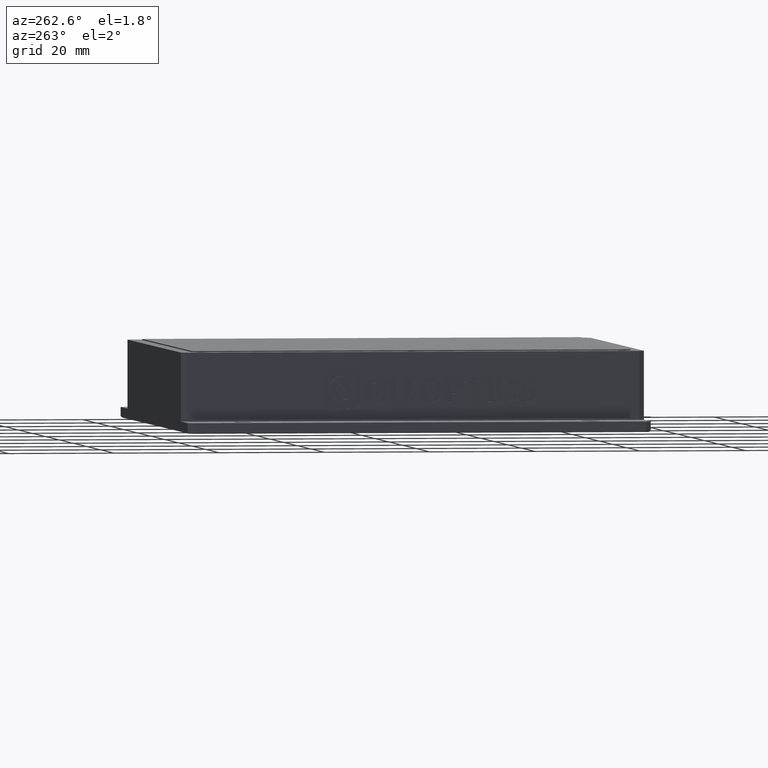
[diagram: clean part render]
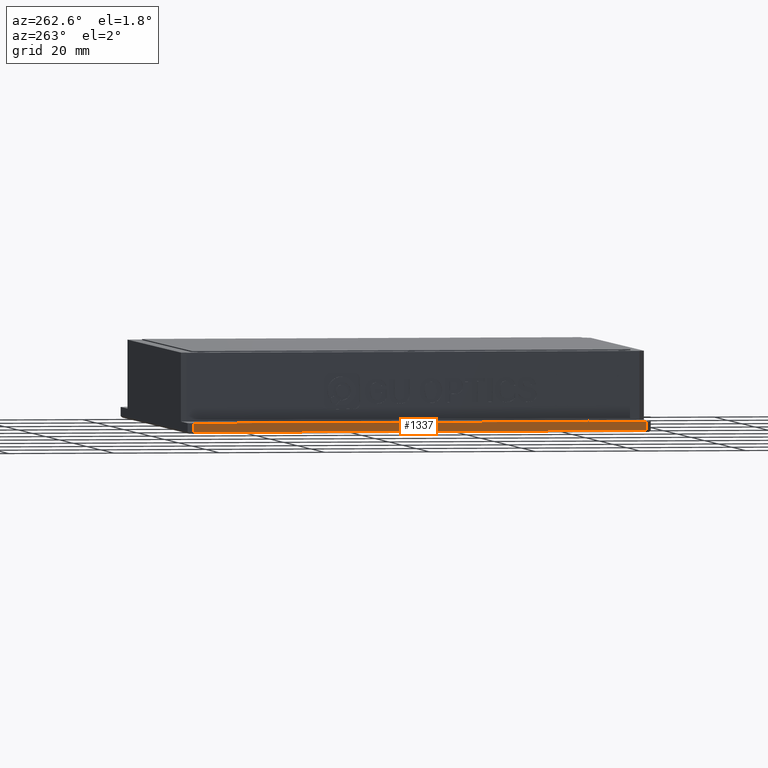
[diagram: same view with one face highlighted and labeled with its STEP entity id]
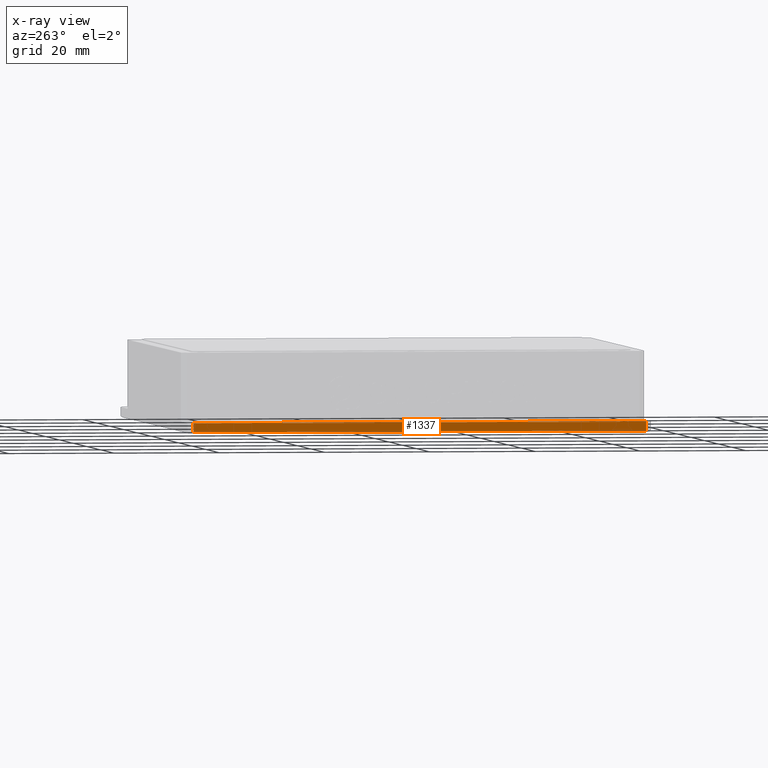
[diagram: x-ray of the same camera — body ghosted, the highlighted face saturated]
A machine part, auxiliary view. The second image highlights one B-rep face of the part: STEP entity #1337.
The next image is the same camera in x-ray: the body ghosted, the highlighted face saturated — about 0% of this face is hidden behind the body in this view.
In plain terms, the highlighted planar face has unit normal (1, 0, 0).
Its self-contained STEP definition (entity closure, byte-faithful):
#637 = CARTESIAN_POINT ( 'NONE',  ( -32.94768995799925900, -48.20007636502478500, -4.547577592273199800E-012 ) ) ;
#690 = VECTOR ( 'NONE', #1995, 1000.000000000000000 ) ;
#700 = DIRECTION ( 'NONE',  ( 1.000000000000000000, 0.0000000000000000000, 0.0000000000000000000 ) ) ;
#830 = DIRECTION ( 'NONE',  ( 0.0000000000000000000, 0.0000000000000000000, -1.000000000000000000 ) ) ;
#963 = EDGE_CURVE ( 'NONE', #9995, #6929, #12749, .T. ) ;
#1337 = ADVANCED_FACE ( 'NONE', ( #15702 ), #4226, .F. ) ;
#1995 = DIRECTION ( 'NONE',  ( 0.0000000000000000000, 0.0000000000000000000, -1.000000000000000000 ) ) ;
#2406 = EDGE_LOOP ( 'NONE', ( #14250, #14487, #12641, #14957 ) ) ;
#3921 = EDGE_CURVE ( 'NONE', #6018, #9995, #11830, .T. ) ;
#4226 = PLANE ( 'NONE',  #12485 ) ;
#4439 = EDGE_CURVE ( 'NONE', #6578, #6929, #16424, .T. ) ;
#5370 = EDGE_CURVE ( 'NONE', #6018, #6578, #14871, .T. ) ;
#5579 = VECTOR ( 'NONE', #5621, 1000.000000000000000 ) ;
#5621 = DIRECTION ( 'NONE',  ( -0.0000000000000000000, 1.000000000000000000, 0.0000000000000000000 ) ) ;
#5654 = CARTESIAN_POINT ( 'NONE',  ( -32.94768995799925900, -48.20007636502478500, -1.700000000004553000 ) ) ;
#6018 = VERTEX_POINT ( 'NONE', #15879 ) ;
#6578 = VERTEX_POINT ( 'NONE', #13445 ) ;
#6929 = VERTEX_POINT ( 'NONE', #8790 ) ;
#8790 = CARTESIAN_POINT ( 'NONE',  ( -32.94768995799925900, 38.79992363497523700, -1.700000000004552300 ) ) ;
#9995 = VERTEX_POINT ( 'NONE', #12059 ) ;
#10072 = CARTESIAN_POINT ( 'NONE',  ( -32.94768995799925900, 39.79992363497521500, -4.547577592273199800E-012 ) ) ;
#10529 = DIRECTION ( 'NONE',  ( 0.0000000000000000000, 1.000000000000000000, 0.0000000000000000000 ) ) ;
#11635 = CARTESIAN_POINT ( 'NONE',  ( -32.94768995799925900, -47.20007636502478500, -4.547577592273199800E-012 ) ) ;
#11830 = LINE ( 'NONE', #10072, #15036 ) ;
#12059 = CARTESIAN_POINT ( 'NONE',  ( -32.94768995799926600, 38.79992363497523700, -4.547577592273199800E-012 ) ) ;
#12485 = AXIS2_PLACEMENT_3D ( 'NONE', #637, #700, #830 ) ;
#12641 = ORIENTED_EDGE ( 'NONE', *, *, #3921, .T. ) ;
#12749 = LINE ( 'NONE', #14837, #16380 ) ;
#13445 = CARTESIAN_POINT ( 'NONE',  ( -32.94768995799925900, -47.20007636502478500, -1.700000000004549900 ) ) ;
#14250 = ORIENTED_EDGE ( 'NONE', *, *, #4439, .F. ) ;
#14487 = ORIENTED_EDGE ( 'NONE', *, *, #5370, .F. ) ;
#14820 = DIRECTION ( 'NONE',  ( 0.0000000000000000000, -0.0000000000000000000, -1.000000000000000000 ) ) ;
#14837 = CARTESIAN_POINT ( 'NONE',  ( -32.94768995799927300, 38.79992363497522200, -4.547577592273199800E-012 ) ) ;
#14871 = LINE ( 'NONE', #11635, #690 ) ;
#14957 = ORIENTED_EDGE ( 'NONE', *, *, #963, .T. ) ;
#15036 = VECTOR ( 'NONE', #10529, 1000.000000000000000 ) ;
#15702 = FACE_OUTER_BOUND ( 'NONE', #2406, .T. ) ;
#15879 = CARTESIAN_POINT ( 'NONE',  ( -32.94768995799925900, -47.20007636502478500, -4.547577592273199800E-012 ) ) ;
#16380 = VECTOR ( 'NONE', #14820, 1000.000000000000000 ) ;
#16424 = LINE ( 'NONE', #5654, #5579 ) ;